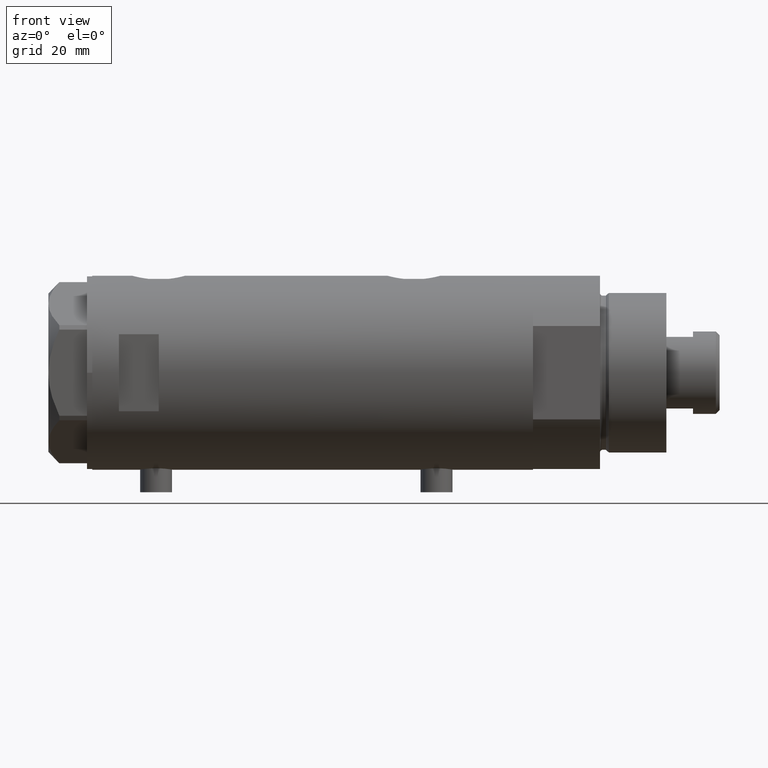
[diagram: clean part render]
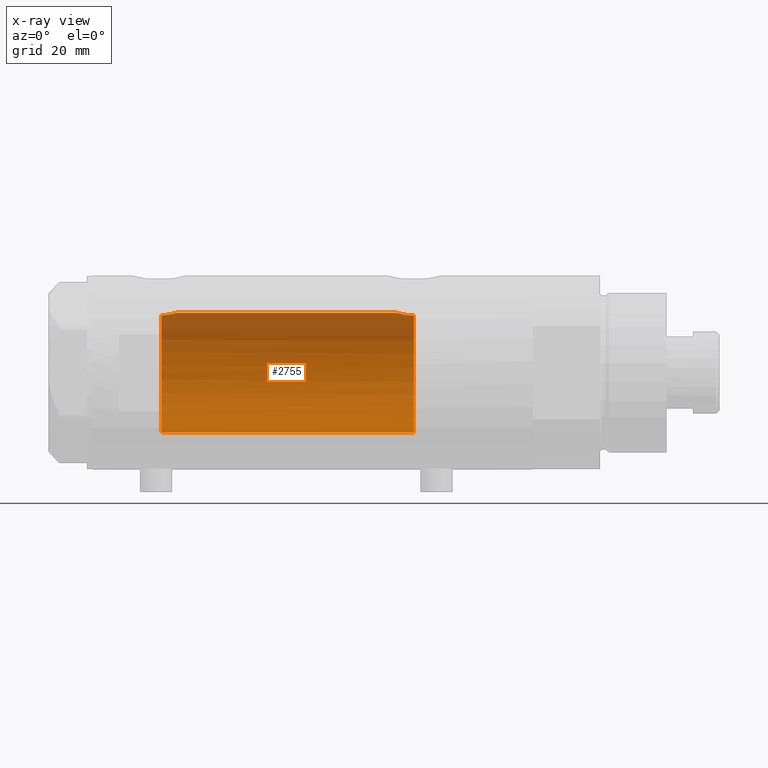
[diagram: x-ray — body ghosted, one internal face saturated and labeled with its STEP entity id]
A machine part, front view, then the same camera in x-ray: the body is ghosted and one INTERNAL B-rep face — a face not visible from any outside direction — is saturated and labeled: STEP entity #2755.
In plain terms, the highlighted cylindrical surface (partial cylindrical patch) has radius 22.5 mm, axis along (1, 0, -0).
Its self-contained STEP definition (entity closure, byte-faithful):
#70 = CARTESIAN_POINT ( 'NONE',  ( -22.49880827379606174, 0.2667964930359407738, 56.41065720946402706 ) ) ;
#95 = EDGE_CURVE ( 'NONE', #3847, #1051, #1720, .T. ) ;
#137 = ORIENTED_EDGE ( 'NONE', *, *, #4155, .F. ) ;
#206 = CARTESIAN_POINT ( 'NONE',  ( 21.58039466125149630, 6.367443256290042264, -36.38625661091905528 ) ) ;
#210 = CARTESIAN_POINT ( 'NONE',  ( 22.50000000000000355, 0.000000000000000000, 51.32000000000000028 ) ) ;
#227 = CARTESIAN_POINT ( 'NONE',  ( 22.50000000000000355, 8.058593785575293352E-16, -31.51999999999999957 ) ) ;
#250 = CARTESIAN_POINT ( 'NONE',  ( 21.51969523957628283, 6.569111213712935715, -37.66380209493692632 ) ) ;
#305 = DIRECTION ( 'NONE',  ( -0.000000000000000000, -0.000000000000000000, -1.000000000000000000 ) ) ;
#313 = DIRECTION ( 'NONE',  ( 1.000000000000000000, 0.000000000000000000, 0.000000000000000000 ) ) ;
#343 = CARTESIAN_POINT ( 'NONE',  ( 0.000000000000000000, 0.000000000000000000, 56.90000000000000568 ) ) ;
#353 = CARTESIAN_POINT ( 'NONE',  ( -22.49410607591505240, 0.5317386154976333490, 56.45352050033555003 ) ) ;
#374 = CARTESIAN_POINT ( 'NONE',  ( -22.49055927180484105, 0.6639780822022154361, 56.48607637978749807 ) ) ;
#392 = CARTESIAN_POINT ( 'NONE',  ( 22.34487948028763071, 2.662928462767973237, 51.87031008565885060 ) ) ;
#540 = CARTESIAN_POINT ( 'NONE',  ( 22.48752745446833501, 0.8626660575027224054, -31.56226479722901956 ) ) ;
#556 = EDGE_LOOP ( 'NONE', ( #3305, #3361, #1740, #3162, #3859, #3343, #137 ) ) ;
#571 = CARTESIAN_POINT ( 'NONE',  ( 21.88602906110443058, 5.222191658358659616, -34.09110908501991588 ) ) ;
#596 = CARTESIAN_POINT ( 'NONE',  ( -22.44994432064364887, 1.500000000000010658, 56.90000000000000568 ) ) ;
#683 = CARTESIAN_POINT ( 'NONE',  ( 21.53958216864941733, 6.503568251352486840, 56.90000000000000568 ) ) ;
#700 = EDGE_CURVE ( 'NONE', #1661, #1619, #3180, .T. ) ;
#711 = DIRECTION ( 'NONE',  ( -1.000000000000000000, 0.000000000000000000, 0.000000000000000000 ) ) ;
#742 = CIRCLE ( 'NONE', #2063, 22.50000000000000355 ) ;
#764 = CARTESIAN_POINT ( 'NONE',  ( -22.50000000000000711, 0.1337051520153808293, 56.39999999999998437 ) ) ;
#802 = CARTESIAN_POINT ( 'NONE',  ( 22.41810768969941847, 1.927264596308556399, 51.60552498238021002 ) ) ;
#916 = CARTESIAN_POINT ( 'NONE',  ( -22.50000000000000355, 0.000000000000000000, 82.90000000000000568 ) ) ;
#946 = CARTESIAN_POINT ( 'NONE',  ( 22.40265168709897736, 2.128491761919761416, -31.85897789146818582 ) ) ;
#949 = CARTESIAN_POINT ( 'NONE',  ( 22.50000000000000355, 0.3947970979781463829, 51.31999999999999318 ) ) ;
#990 = DIRECTION ( 'NONE',  ( 0.000000000000000000, 0.000000000000000000, -1.000000000000000000 ) ) ;
#1006 = CARTESIAN_POINT ( 'NONE',  ( 22.43846943857365872, 1.717024460055897039, -31.73305400432138867 ) ) ;
#1042 = CARTESIAN_POINT ( 'NONE',  ( -22.50000000000000355, 3.061617244220330846E-16, 56.39999999999999858 ) ) ;
#1051 = VERTEX_POINT ( 'NONE', #596 ) ;
#1140 = CARTESIAN_POINT ( 'NONE',  ( -22.46399894542833309, 1.277836078927884422, 56.74707957770323219 ) ) ;
#1160 = CARTESIAN_POINT ( 'NONE',  ( 21.60406082673097927, 6.286405977953741342, 55.94666670735803393 ) ) ;
#1177 = CARTESIAN_POINT ( 'NONE',  ( 21.97198143592078878, 4.852313884858198811, 53.43898489903312310 ) ) ;
#1200 = CARTESIAN_POINT ( 'NONE',  ( 21.70300828301578733, 5.938634204148080187, 55.04008341356918521 ) ) ;
#1313 = CARTESIAN_POINT ( 'NONE',  ( 21.94924653817634663, 4.949760619110008975, -33.75922104935666113 ) ) ;
#1364 = EDGE_CURVE ( 'NONE', #1619, #1852, #2197, .T. ) ;
#1419 = DIRECTION ( 'NONE',  ( -1.000000000000000000, 0.000000000000000000, 0.000000000000000000 ) ) ;
#1569 = EDGE_CURVE ( 'NONE', #3847, #2646, #2431, .T. ) ;
#1611 = CARTESIAN_POINT ( 'NONE',  ( 22.20005338163447206, 3.677069589895788582, 52.42964083487822791 ) ) ;
#1619 = VERTEX_POINT ( 'NONE', #2381 ) ;
#1649 = CARTESIAN_POINT ( 'NONE',  ( 22.07793805162484446, 4.348669293362732446, -33.14321183416397076 ) ) ;
#1661 = VERTEX_POINT ( 'NONE', #4217 ) ;
#1720 = B_SPLINE_CURVE_WITH_KNOTS ( 'NONE', 3,
 ( #4503, #764, #70, #353, #374, #2934, #2596, #1140, #4483, #2288 ),
 .UNSPECIFIED., .F., .F.,
 ( 4, 2, 2, 2, 4 ),
 ( 0.007822175643245121018, 0.008222643399515484897, 0.008623111155785847040, 0.009023578912056209184, 0.009424046668326573062 ),
 .UNSPECIFIED. ) ;
#1730 = CARTESIAN_POINT ( 'NONE',  ( 22.50000000000000711, 0.4308769323960432440, -31.52000000000001378 ) ) ;
#1740 = ORIENTED_EDGE ( 'NONE', *, *, #4235, .T. ) ;
#1758 = CARTESIAN_POINT ( 'NONE',  ( 21.53277870401796434, 6.526097350343573744, -37.23193080670432664 ) ) ;
#1772 = CARTESIAN_POINT ( 'NONE',  ( 22.50000000000000355, 8.058593785575293352E-16, -31.51999999999999957 ) ) ;
#1852 = VERTEX_POINT ( 'NONE', #1772 ) ;
#1874 = CARTESIAN_POINT ( 'NONE',  ( 22.30007684883240060, 3.011608117356138425, 52.03690468166832517 ) ) ;
#1897 = CARTESIAN_POINT ( 'NONE',  ( 22.40112435233285026, 2.115025885874699973, 51.66613662186026090 ) ) ;
#1944 = CARTESIAN_POINT ( 'NONE',  ( 21.58771824211648038, 6.342145538420561834, 56.13591924784430631 ) ) ;
#1972 = CIRCLE ( 'NONE', #4668, 22.50000000000000355 ) ;
#2033 = CARTESIAN_POINT ( 'NONE',  ( 21.98170506496023435, 4.804030677015544981, -33.59847163284562299 ) ) ;
#2062 = CARTESIAN_POINT ( 'NONE',  ( 21.76592257976932032, 5.705656113855375189, -34.79484284637812408 ) ) ;
#2063 = AXIS2_PLACEMENT_3D ( 'NONE', #343, #4781, #313 ) ;
#2109 = CARTESIAN_POINT ( 'NONE',  ( 21.54248662244912893, 6.494090541481658541, -37.01861175082140676 ) ) ;
#2116 = CARTESIAN_POINT ( 'NONE',  ( 0.000000000000000000, 0.000000000000000000, -38.09999999999999432 ) ) ;
#2140 = CARTESIAN_POINT ( 'NONE',  ( 21.71097692913352617, 5.908765693315405798, -35.17224774632267525 ) ) ;
#2177 = CARTESIAN_POINT ( 'NONE',  ( 0.000000000000000000, 0.000000000000000000, 82.90000000000000568 ) ) ;
#2197 = LINE ( 'NONE', #3629, #3186 ) ;
#2229 = VERTEX_POINT ( 'NONE', #2731 ) ;
#2255 = CARTESIAN_POINT ( 'NONE',  ( 21.80257506594836059, 5.561983929949493088, 54.36293428743496747 ) ) ;
#2283 = CARTESIAN_POINT ( 'NONE',  ( 22.44738562510071489, 1.549445000368393277, 51.50203276325539292 ) ) ;
#2288 = CARTESIAN_POINT ( 'NONE',  ( -22.44994432064364887, 1.500000000000010658, 56.90000000000000568 ) ) ;
#2311 = EDGE_CURVE ( 'NONE', #2646, #2229, #1972, .T. ) ;
#2381 = CARTESIAN_POINT ( 'NONE',  ( 22.50000000000000355, 0.000000000000000000, 51.32000000000000028 ) ) ;
#2416 = CARTESIAN_POINT ( 'NONE',  ( 22.25860915731085754, 3.306748059303223464, -32.39512753277105617 ) ) ;
#2431 = LINE ( 'NONE', #916, #2514 ) ;
#2467 = CARTESIAN_POINT ( 'NONE',  ( 21.61738790272778843, 6.242481197317898634, -35.97475324290417831 ) ) ;
#2480 = CYLINDRICAL_SURFACE ( 'NONE', #4119, 22.50000000000000355 ) ;
#2486 = CARTESIAN_POINT ( 'NONE',  ( 22.31307373663816662, 2.921646833104065255, -32.18858613169776817 ) ) ;
#2514 = VECTOR ( 'NONE', #3844, 1000.000000000000000 ) ;
#2596 = CARTESIAN_POINT ( 'NONE',  ( -22.47624011997706361, 1.040549726802382002, 56.62289928738235290 ) ) ;
#2635 = CARTESIAN_POINT ( 'NONE',  ( 22.14421896774458887, 3.996618394220599946, 52.65850411031065192 ) ) ;
#2646 = VERTEX_POINT ( 'NONE', #4084 ) ;
#2663 = CARTESIAN_POINT ( 'NONE',  ( 22.45973433770731020, 1.359115216171840279, 51.45894713662338660 ) ) ;
#2731 = CARTESIAN_POINT ( 'NONE',  ( 21.51635656889892800, 6.580000000000002736, -38.10000000000000142 ) ) ;
#2755 = ADVANCED_FACE ( 'NONE', ( #4717 ), #2480, .F. ) ;
#2818 = CARTESIAN_POINT ( 'NONE',  ( 22.14109776314135658, 4.018961829707383693, -32.87237162697964266 ) ) ;
#2934 = CARTESIAN_POINT ( 'NONE',  ( -22.48163274036980397, 0.9177758873189288957, 56.57071222075915529 ) ) ;
#2999 = CARTESIAN_POINT ( 'NONE',  ( 21.55996057785741726, 6.435875139617805551, 56.51641692772588499 ) ) ;
#3024 = CARTESIAN_POINT ( 'NONE',  ( 21.85834467356397681, 5.340944334976049923, 54.03736885285049851 ) ) ;
#3162 = ORIENTED_EDGE ( 'NONE', *, *, #95, .F. ) ;
#3175 = CARTESIAN_POINT ( 'NONE',  ( 21.85514244747245272, 5.349553529053609147, -34.26278474480277225 ) ) ;
#3180 = B_SPLINE_CURVE_WITH_KNOTS ( 'NONE', 3,
 ( #683, #3422, #2999, #1944, #1160, #4499, #1200, #2255, #3024, #1177, #4548, #2635, #1611, #1874, #392, #1897, #802, #2283, #2663, #3811, #949, #210 ),
 .UNSPECIFIED., .F., .F.,
 ( 4, 2, 2, 2, 2, 2, 2, 2, 2, 2, 4 ),
 ( 0.03202894702871426219, 0.03261250414633486139, 0.03319606126395546059, 0.03436317549919667980, 0.03553028973443790595, 0.03669740396967912516, 0.03786451820492034437, 0.03903163244016157052, 0.03961518955778217665, 0.04019874667540278973, 0.04136586091064400894 ),
 .UNSPECIFIED. ) ;
#3186 = VECTOR ( 'NONE', #305, 1000.000000000000000 ) ;
#3209 = CARTESIAN_POINT ( 'NONE',  ( 21.51635656889892800, 6.580000000000002736, -38.10000000000000142 ) ) ;
#3305 = ORIENTED_EDGE ( 'NONE', *, *, #1364, .F. ) ;
#3343 = ORIENTED_EDGE ( 'NONE', *, *, #2311, .T. ) ;
#3361 = ORIENTED_EDGE ( 'NONE', *, *, #700, .F. ) ;
#3422 = CARTESIAN_POINT ( 'NONE',  ( 21.54850992350584349, 6.473999851071386757, 56.70769989068857342 ) ) ;
#3574 = DIRECTION ( 'NONE',  ( -0.000000000000000000, -0.000000000000000000, -1.000000000000000000 ) ) ;
#3629 = CARTESIAN_POINT ( 'NONE',  ( 22.50000000000000355, 2.755455298081545172E-15, 82.90000000000000568 ) ) ;
#3811 = CARTESIAN_POINT ( 'NONE',  ( 22.48961798642638499, 0.7839168256130851775, 51.35525408827136573 ) ) ;
#3844 = DIRECTION ( 'NONE',  ( -0.000000000000000000, -0.000000000000000000, -1.000000000000000000 ) ) ;
#3847 = VERTEX_POINT ( 'NONE', #1042 ) ;
#3859 = ORIENTED_EDGE ( 'NONE', *, *, #1569, .T. ) ;
#3962 = CARTESIAN_POINT ( 'NONE',  ( 21.51635656889893156, 6.580000000000002736, -37.88312317022887754 ) ) ;
#4084 = CARTESIAN_POINT ( 'NONE',  ( -22.50000000000000355, 0.000000000000000000, -38.09999999999999432 ) ) ;
#4111 = B_SPLINE_CURVE_WITH_KNOTS ( 'NONE', 3,
 ( #227, #1730, #540, #1006, #946, #2486, #2416, #2818, #1649, #2033, #1313, #571, #3175, #2062, #2140, #2467, #206, #2109, #1758, #250, #3962, #3209 ),
 .UNSPECIFIED., .F., .F.,
 ( 4, 2, 2, 2, 2, 2, 2, 2, 2, 2, 4 ),
 ( 0.02068572879290663316, 0.02197833177876012262, 0.02327093476461361554, 0.02456353775046710500, 0.02585614073632059445, 0.02650244222924734785, 0.02714874372217410126, 0.02844134670802762888, 0.02973394969388114956, 0.03038025118680791337, 0.03102655267973467718 ),
 .UNSPECIFIED. ) ;
#4119 = AXIS2_PLACEMENT_3D ( 'NONE', #2177, #3574, #711 ) ;
#4155 = EDGE_CURVE ( 'NONE', #1852, #2229, #4111, .T. ) ;
#4217 = CARTESIAN_POINT ( 'NONE',  ( 21.53958216864941733, 6.503568251352486840, 56.90000000000000568 ) ) ;
#4235 = EDGE_CURVE ( 'NONE', #1661, #1051, #742, .T. ) ;
#4483 = CARTESIAN_POINT ( 'NONE',  ( -22.45709582300229101, 1.392966113493045333, 56.81972458511977919 ) ) ;
#4499 = CARTESIAN_POINT ( 'NONE',  ( 21.65875036540690601, 6.096384986856001831, 55.39350157007414310 ) ) ;
#4503 = CARTESIAN_POINT ( 'NONE',  ( -22.50000000000000355, 3.061617244220330846E-16, 56.39999999999999858 ) ) ;
#4548 = CARTESIAN_POINT ( 'NONE',  ( 22.03020271031499888, 4.583618747547679284, 53.16326305060303525 ) ) ;
#4668 = AXIS2_PLACEMENT_3D ( 'NONE', #2116, #990, #1419 ) ;
#4717 = FACE_OUTER_BOUND ( 'NONE', #556, .T. ) ;
#4781 = DIRECTION ( 'NONE',  ( 0.000000000000000000, 0.000000000000000000, 1.000000000000000000 ) ) ;